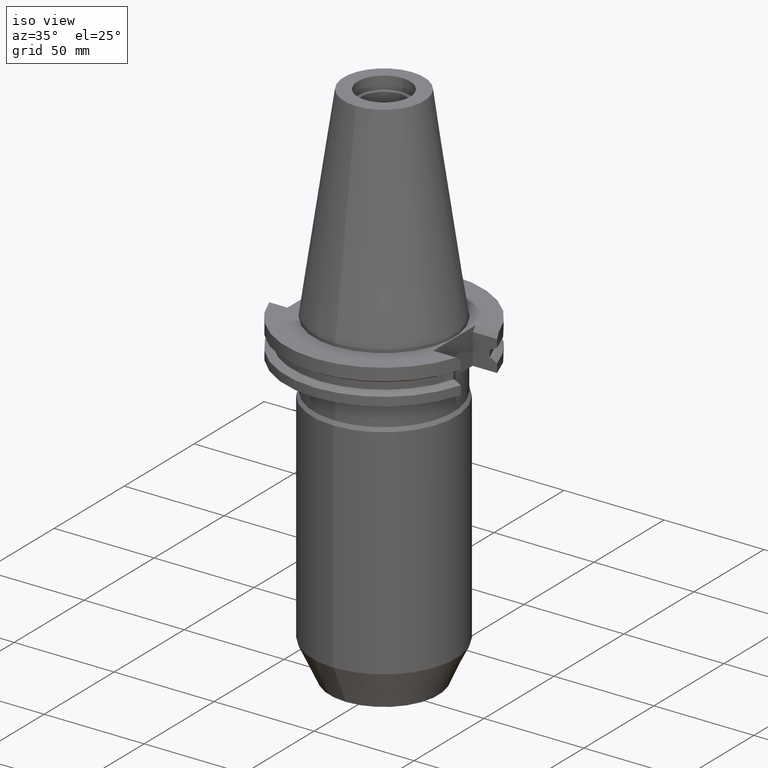
[diagram: clean part render]
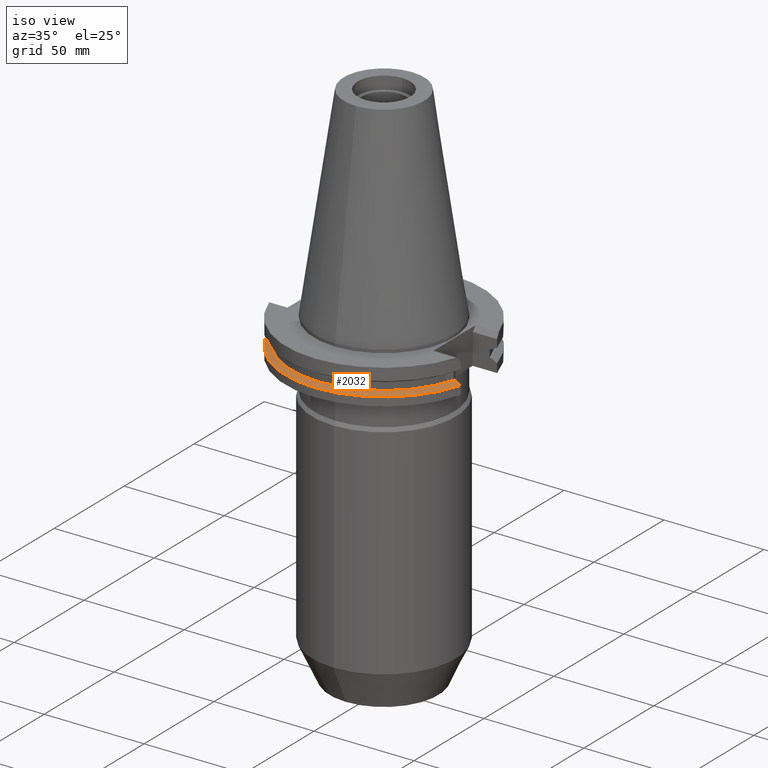
[diagram: same view with one face highlighted and labeled with its STEP entity id]
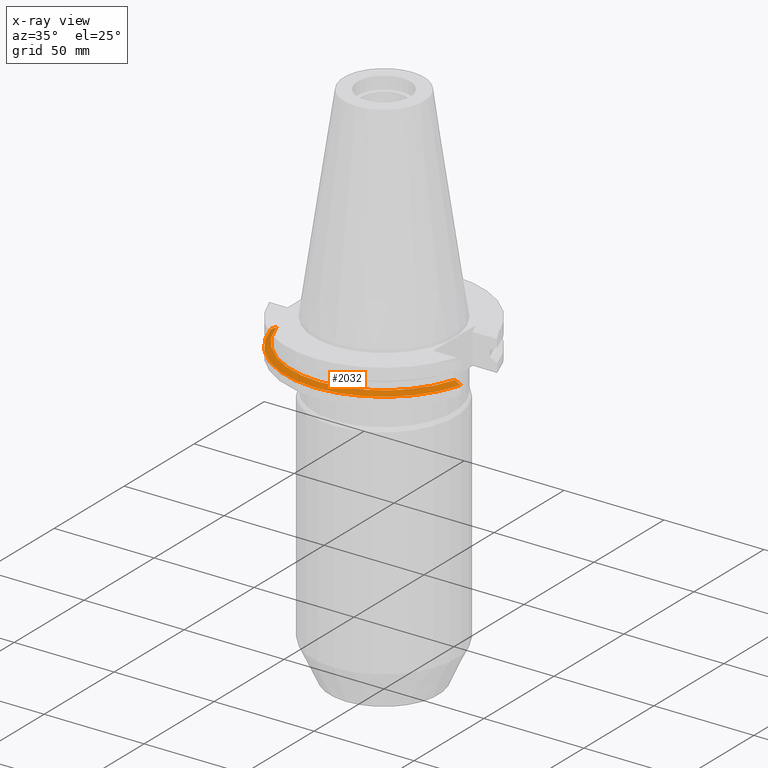
[diagram: x-ray of the same camera — body ghosted, the highlighted face saturated]
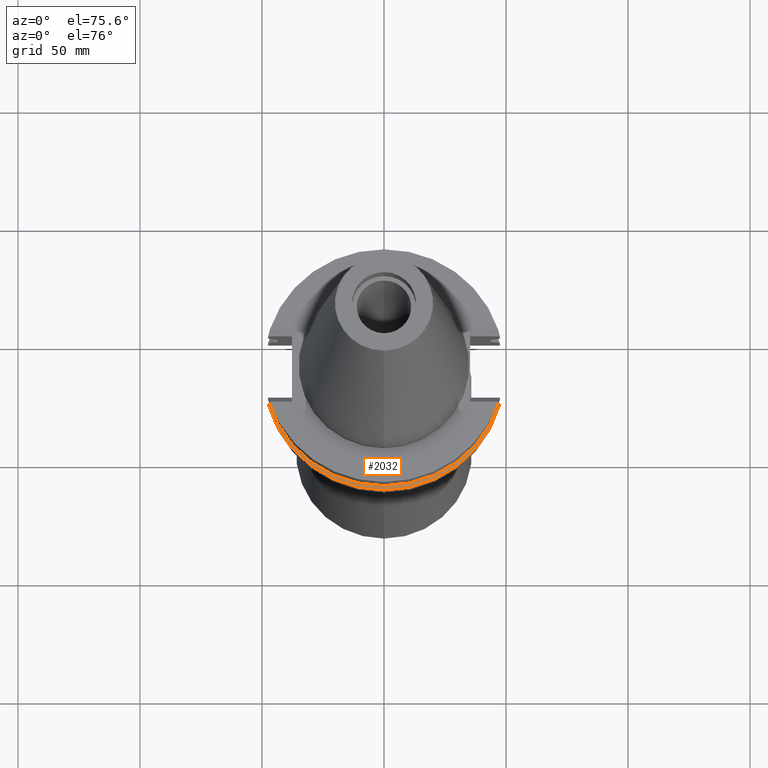
[diagram: same view with one face highlighted and labeled with its STEP entity id]
A machine part, iso view. The second image highlights one B-rep face of the part: STEP entity #2032.
The next image is the same camera in x-ray: the body ghosted, the highlighted face saturated — about 0% of this face is hidden behind the body in this view.
A second angle (auxiliary view) of the same face is appended — the face is thin or edge-on in the first view.
In plain terms, the highlighted conical surface has half-angle 60 deg.
Its self-contained STEP definition (entity closure, byte-faithful):
#750=CARTESIAN_POINT('',(0.E0,0.E0,-1.30475E1));
#751=DIRECTION('',(0.E0,0.E0,-1.E0));
#752=DIRECTION('',(9.602855947900E-1,-2.790189535476E-1,0.E0));
#753=AXIS2_PLACEMENT_3D('',#750,#751,#752);
#758=CARTESIAN_POINT('',(0.E0,0.E0,-1.30475E1));
#759=DIRECTION('',(0.E0,0.E0,-1.E0));
#760=DIRECTION('',(0.E0,-1.E0,0.E0));
#761=AXIS2_PLACEMENT_3D('',#758,#759,#760);
#782=CARTESIAN_POINT('',(4.458657636813E1,-1.2955E1,-1.30475E1));
#783=CARTESIAN_POINT('',(4.490806163993E1,-1.2955E1,-1.322573823302E1));
#784=CARTESIAN_POINT('',(4.555077636711E1,-1.2955E1,-1.358239409644E1));
#785=CARTESIAN_POINT('',(4.651414584908E1,-1.2955E1,-1.411780078680E1));
#786=CARTESIAN_POINT('',(4.715593427837E1,-1.2955E1,-1.447499824730E1));
#787=CARTESIAN_POINT('',(4.747671146204E1,-1.2955E1,-1.465366676908E1));
#792=CARTESIAN_POINT('',(0.E0,0.E0,-1.465366676908E1));
#793=DIRECTION('',(0.E0,0.E0,-1.E0));
#794=DIRECTION('',(9.647287063661E-1,-2.632461264923E-1,0.E0));
#795=AXIS2_PLACEMENT_3D('',#792,#793,#794);
#800=CARTESIAN_POINT('',(0.E0,0.E0,-1.465366676908E1));
#801=DIRECTION('',(0.E0,0.E0,-1.E0));
#802=DIRECTION('',(0.E0,-1.E0,0.E0));
#803=AXIS2_PLACEMENT_3D('',#800,#801,#802);
#808=CARTESIAN_POINT('',(-4.747671146204E1,-1.2955E1,-1.465366676908E1));
#809=CARTESIAN_POINT('',(-4.715593427836E1,-1.2955E1,-1.447499824729E1));
#810=CARTESIAN_POINT('',(-4.651414584905E1,-1.2955E1,-1.411780078678E1));
#811=CARTESIAN_POINT('',(-4.555077636708E1,-1.2955E1,-1.358239409642E1));
#812=CARTESIAN_POINT('',(-4.490806163991E1,-1.2955E1,-1.322573823301E1));
#813=CARTESIAN_POINT('',(-4.458657636813E1,-1.2955E1,-1.30475E1));
#1412=CARTESIAN_POINT('',(4.747671146204E1,-1.2955E1,-1.465366676908E1));
#1413=VERTEX_POINT('',#1412);
#1414=VERTEX_POINT('',#782);
#1421=CARTESIAN_POINT('',(-4.747671146204E1,-1.2955E1,-1.465366676908E1));
#1422=VERTEX_POINT('',#1421);
#1423=CARTESIAN_POINT('',(0.E0,-4.92125E1,-1.465366676908E1));
#1424=VERTEX_POINT('',#1423);
#1436=CARTESIAN_POINT('',(-4.458657636813E1,-1.2955E1,-1.30475E1));
#1437=VERTEX_POINT('',#1436);
#1451=CARTESIAN_POINT('',(3.687402563152E-14,-4.643053755053E1,-1.30475E1));
#1452=VERTEX_POINT('',#1451);
#2019=CARTESIAN_POINT('',(0.E0,0.E0,-1.385058338454E1));
#2020=DIRECTION('',(0.E0,0.E0,-1.E0));
#2021=DIRECTION('',(0.E0,-1.E0,0.E0));
#2022=AXIS2_PLACEMENT_3D('',#2019,#2020,#2021);
#2023=CONICAL_SURFACE('',#2022,4.782151877527E1,6.E1);
#2024=ORIENTED_EDGE('',*,*,#1899,.T.);
#2025=ORIENTED_EDGE('',*,*,#1927,.T.);
#2026=ORIENTED_EDGE('',*,*,#1925,.T.);
#2027=ORIENTED_EDGE('',*,*,#1949,.T.);
#2028=ORIENTED_EDGE('',*,*,#2011,.F.);
#2029=ORIENTED_EDGE('',*,*,#2009,.F.);
#2030=EDGE_LOOP('',(#2024,#2025,#2026,#2027,#2028,#2029));
#2031=FACE_OUTER_BOUND('',#2030,.F.);
#754=CIRCLE('',#753,4.643053755053E1);
#762=CIRCLE('',#761,4.643053755053E1);
#788=B_SPLINE_CURVE_WITH_KNOTS('',3,(#782,#783,#784,#785,#786,#787),
.UNSPECIFIED.,.F.,.F.,(4,1,1,4),(0.E0,3.333333333333E-1,6.666666666667E-1,1.E0),
.UNSPECIFIED.);
#796=CIRCLE('',#795,4.92125E1);
#804=CIRCLE('',#803,4.92125E1);
#814=B_SPLINE_CURVE_WITH_KNOTS('',3,(#808,#809,#810,#811,#812,#813),
.UNSPECIFIED.,.F.,.F.,(4,1,1,4),(0.E0,3.333333333333E-1,6.666666666667E-1,1.E0),
.UNSPECIFIED.);
#1899=EDGE_CURVE('',#1414,#1413,#788,.T.);
#1925=EDGE_CURVE('',#1424,#1422,#804,.T.);
#1927=EDGE_CURVE('',#1413,#1424,#796,.T.);
#1949=EDGE_CURVE('',#1422,#1437,#814,.T.);
#2009=EDGE_CURVE('',#1414,#1452,#754,.T.);
#2011=EDGE_CURVE('',#1452,#1437,#762,.T.);
#2032=ADVANCED_FACE('',(#2031),#2023,.T.);